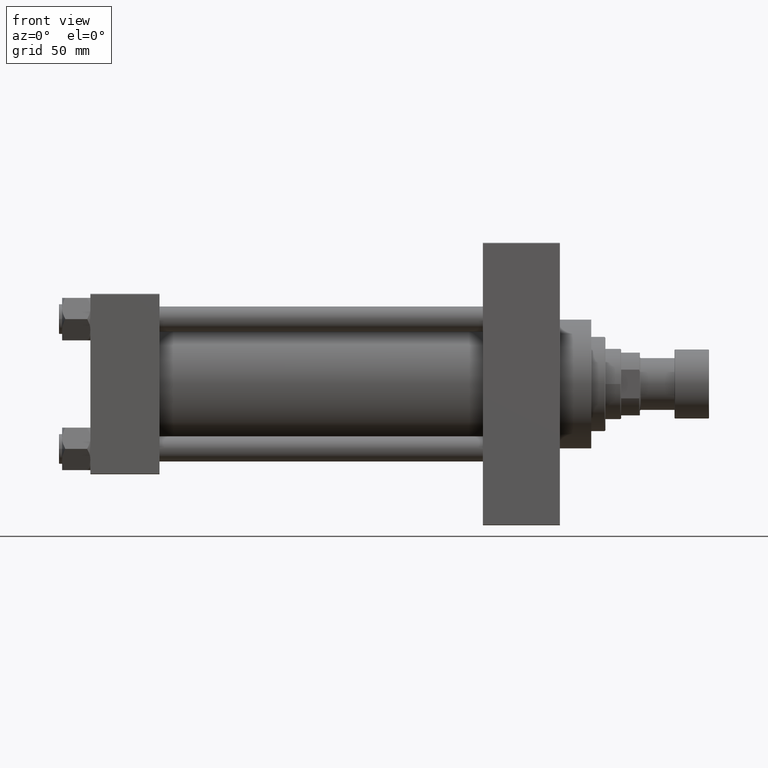
[diagram: clean part render]
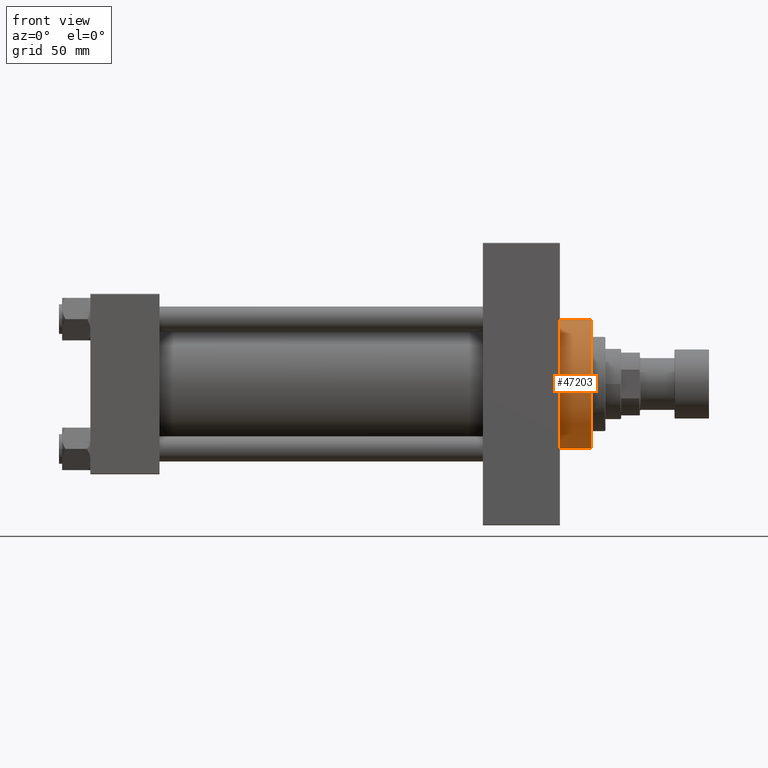
[diagram: same view with one face highlighted and labeled with its STEP entity id]
A machine part, front view. The second image highlights one B-rep face of the part: STEP entity #47203.
In plain terms, the highlighted cylindrical surface (partial cylindrical patch) has radius 41 mm, axis along (-1, -0, -0).
Its self-contained STEP definition (entity closure, byte-faithful):
#3116 = EDGE_CURVE ( 'NONE', #25927, #44232, #14776, .T. ) ;
#3504 = VECTOR ( 'NONE', #31148, 1000.000000000000000 ) ;
#3932 = ORIENTED_EDGE ( 'NONE', *, *, #36162, .F. ) ;
#4352 = AXIS2_PLACEMENT_3D ( 'NONE', #15052, #15297, #25822 ) ;
#4877 = VERTEX_POINT ( 'NONE', #20071 ) ;
#6508 = LINE ( 'NONE', #13597, #26930 ) ;
#7193 = ORIENTED_EDGE ( 'NONE', *, *, #3116, .T. ) ;
#7581 = CARTESIAN_POINT ( 'NONE',  ( 299.0000000000000000, 0.000000000000000000, 41.00000000000000000 ) ) ;
#9619 = CARTESIAN_POINT ( 'NONE',  ( 319.0000000000000000, 5.021051876504148963E-15, -41.00000000000000000 ) ) ;
#11401 = CIRCLE ( 'NONE', #4352, 41.00000000000000000 ) ;
#13597 = CARTESIAN_POINT ( 'NONE',  ( 319.0000000000000000, 0.000000000000000000, 41.00000000000000000 ) ) ;
#14345 = CARTESIAN_POINT ( 'NONE',  ( 299.0000000000000000, 0.000000000000000000, 0.000000000000000000 ) ) ;
#14776 = CIRCLE ( 'NONE', #15544, 41.00000000000000000 ) ;
#15052 = CARTESIAN_POINT ( 'NONE',  ( 319.0000000000000000, 0.000000000000000000, 0.000000000000000000 ) ) ;
#15297 = DIRECTION ( 'NONE',  ( 1.000000000000000000, 0.000000000000000000, 0.000000000000000000 ) ) ;
#15544 = AXIS2_PLACEMENT_3D ( 'NONE', #14345, #43654, #44386 ) ;
#16450 = DIRECTION ( 'NONE',  ( -1.000000000000000000, -0.000000000000000000, -0.000000000000000000 ) ) ;
#16821 = EDGE_CURVE ( 'NONE', #28507, #4877, #11401, .T. ) ;
#20071 = CARTESIAN_POINT ( 'NONE',  ( 319.0000000000000000, 5.021051876504148963E-15, -41.00000000000000000 ) ) ;
#20114 = FACE_OUTER_BOUND ( 'NONE', #20349, .T. ) ;
#20349 = EDGE_LOOP ( 'NONE', ( #3932, #27140, #47895, #7193 ) ) ;
#25822 = DIRECTION ( 'NONE',  ( 0.000000000000000000, 0.000000000000000000, -1.000000000000000000 ) ) ;
#25927 = VERTEX_POINT ( 'NONE', #7581 ) ;
#26930 = VECTOR ( 'NONE', #40204, 1000.000000000000000 ) ;
#27140 = ORIENTED_EDGE ( 'NONE', *, *, #16821, .F. ) ;
#28507 = VERTEX_POINT ( 'NONE', #28872 ) ;
#28872 = CARTESIAN_POINT ( 'NONE',  ( 319.0000000000000000, 0.000000000000000000, 41.00000000000000000 ) ) ;
#30893 = DIRECTION ( 'NONE',  ( 0.000000000000000000, 0.000000000000000000, 1.000000000000000000 ) ) ;
#31148 = DIRECTION ( 'NONE',  ( -1.000000000000000000, -0.000000000000000000, -0.000000000000000000 ) ) ;
#31386 = LINE ( 'NONE', #9619, #3504 ) ;
#33280 = EDGE_CURVE ( 'NONE', #28507, #25927, #6508, .T. ) ;
#36162 = EDGE_CURVE ( 'NONE', #4877, #44232, #31386, .T. ) ;
#36539 = AXIS2_PLACEMENT_3D ( 'NONE', #41846, #16450, #30893 ) ;
#40204 = DIRECTION ( 'NONE',  ( -1.000000000000000000, -0.000000000000000000, -0.000000000000000000 ) ) ;
#41846 = CARTESIAN_POINT ( 'NONE',  ( 319.0000000000000000, 0.000000000000000000, 0.000000000000000000 ) ) ;
#43654 = DIRECTION ( 'NONE',  ( 1.000000000000000000, 0.000000000000000000, 0.000000000000000000 ) ) ;
#44232 = VERTEX_POINT ( 'NONE', #47337 ) ;
#44386 = DIRECTION ( 'NONE',  ( 0.000000000000000000, 0.000000000000000000, -1.000000000000000000 ) ) ;
#46003 = CYLINDRICAL_SURFACE ( 'NONE', #36539, 41.00000000000000000 ) ;
#47203 = ADVANCED_FACE ( 'NONE', ( #20114 ), #46003, .T. ) ;
#47337 = CARTESIAN_POINT ( 'NONE',  ( 299.0000000000000000, 5.021051876504148963E-15, -41.00000000000000000 ) ) ;
#47895 = ORIENTED_EDGE ( 'NONE', *, *, #33280, .T. ) ;